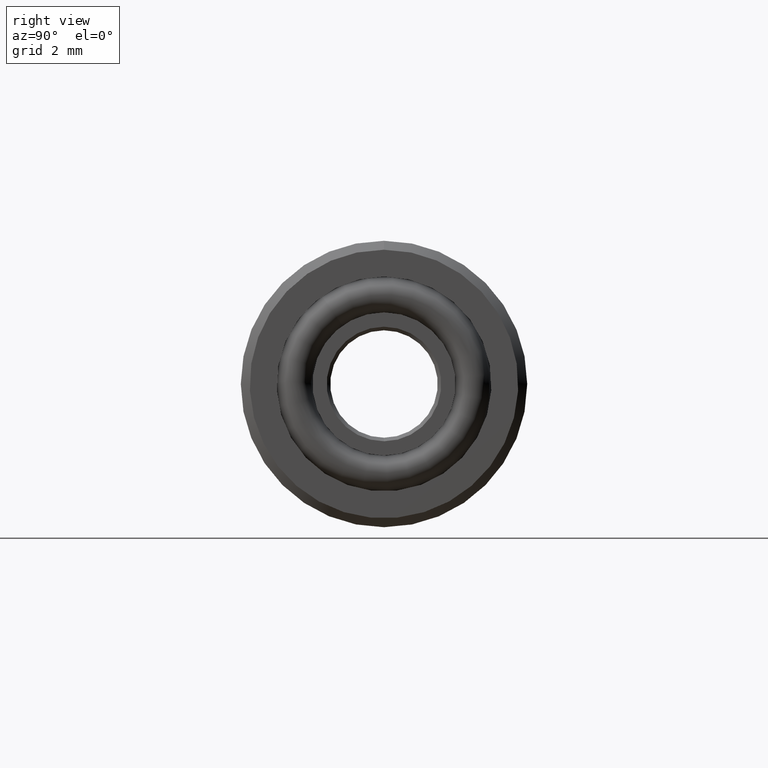
[diagram: clean part render]
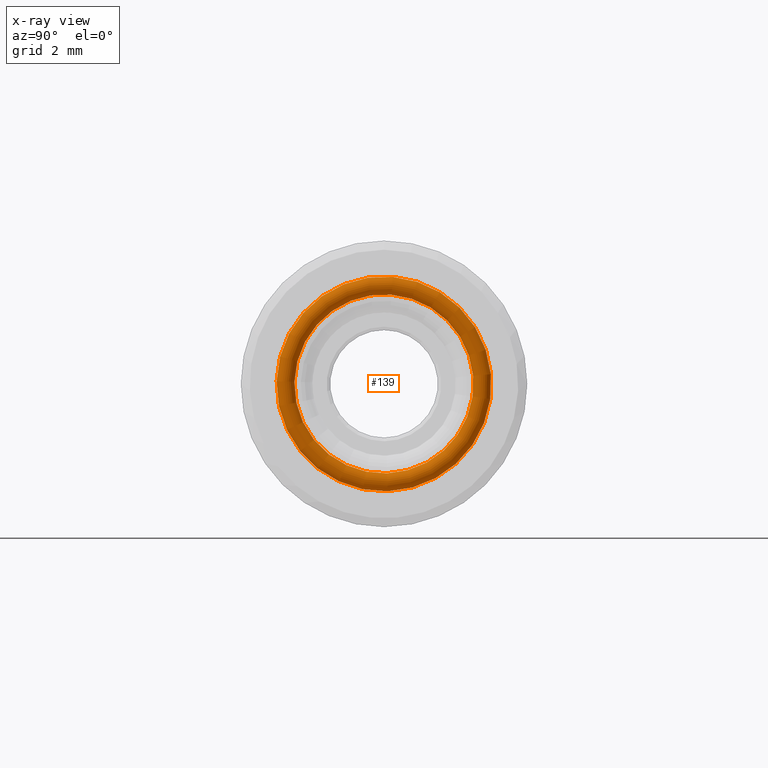
[diagram: x-ray — body ghosted, one internal face saturated and labeled with its STEP entity id]
A machine part, right view, then the same camera in x-ray: the body is ghosted and one INTERNAL B-rep face — a face not visible from any outside direction — is saturated and labeled: STEP entity #139.
In plain terms, the highlighted toroidal blend (fillet) surface has major radius 2.75 mm and minor (blend) radius 0.25 mm.
Its self-contained STEP definition (entity closure, byte-faithful):
#139 = ADVANCED_FACE( '', ( #252 ), #253, .T. );
#252 = FACE_BOUND( '', #386, .T. );
#253 = TOROIDAL_SURFACE( '', #387, 2.75000000000000, 0.250000000000000 );
#386 = VERTEX_LOOP( '', #510 );
#387 = AXIS2_PLACEMENT_3D( '', #511, #512, #513 );
#510 = VERTEX_POINT( '', #742 );
#511 = CARTESIAN_POINT( '', ( 0.000000000000000, 0.000000000000000, 0.000000000000000 ) );
#512 = DIRECTION( '', ( -1.00000000000000, 0.000000000000000, 0.000000000000000 ) );
#513 = DIRECTION( '', ( 0.000000000000000, 0.000000000000000, 1.00000000000000 ) );
#742 = CARTESIAN_POINT( '', ( 0.000000000000000, 0.000000000000000, 3.00000000000000 ) );